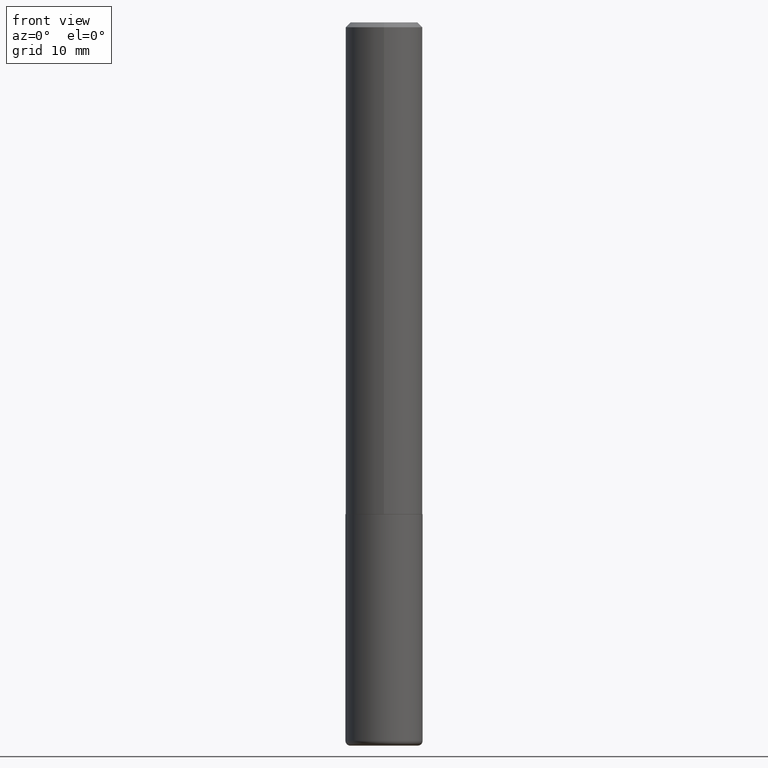
[diagram: clean part render]
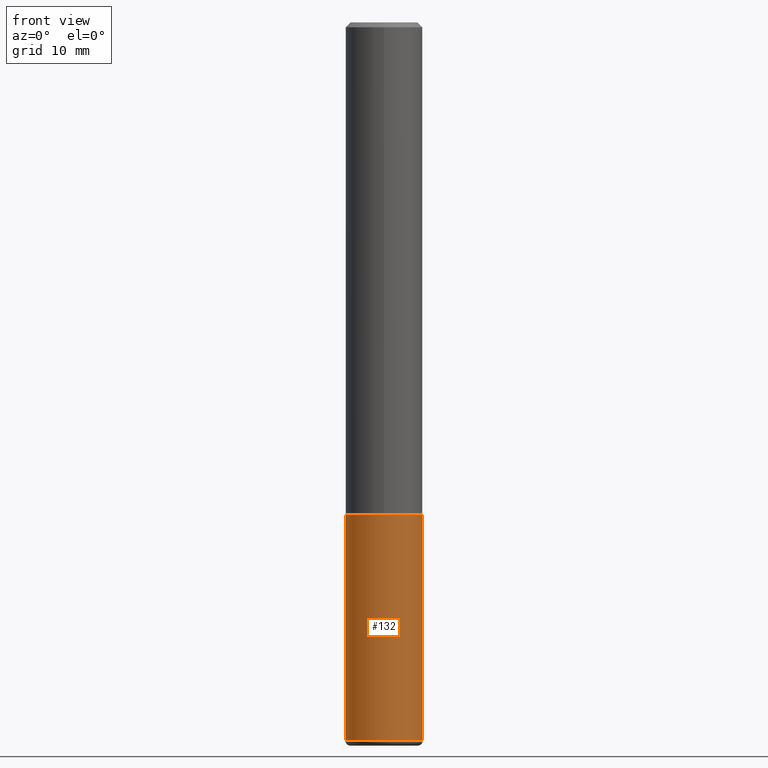
[diagram: same view with one face highlighted and labeled with its STEP entity id]
A machine part, front view. The second image highlights one B-rep face of the part: STEP entity #132.
In plain terms, the highlighted cylindrical surface (partial cylindrical patch) has radius 4.0005 mm, axis along (-0, 0, 1).
Its self-contained STEP definition (entity closure, byte-faithful):
#6 = EDGE_CURVE ( 'NONE', #332, #349, #303, .T. ) ;
#11 = CARTESIAN_POINT ( 'NONE',  ( 0.1575000000000000011, -8.110362001998737613E-15, -2.007899999999999796 ) ) ;
#14 = CARTESIAN_POINT ( 'NONE',  ( -0.1575000000000000011, -7.506599838789833107E-15, -2.007899999999999796 ) ) ;
#23 = EDGE_CURVE ( 'NONE', #62, #332, #126, .T. ) ;
#62 = VERTEX_POINT ( 'NONE', #212 ) ;
#83 = CARTESIAN_POINT ( 'NONE',  ( 0.1575000000000000011, -1.099816621735586889E-15, 7.679978421878598033E-30 ) ) ;
#94 = ORIENTED_EDGE ( 'NONE', *, *, #248, .F. ) ;
#97 = DIRECTION ( 'NONE',  ( 1.000000000000000000, -6.982962677686268288E-15, 0.000000000000000000 ) ) ;
#101 = AXIS2_PLACEMENT_3D ( 'NONE', #258, #202, #97 ) ;
#125 = DIRECTION ( 'NONE',  ( -2.445468806185136597E-29, 3.491481338843145583E-15, 1.000000000000000000 ) ) ;
#126 = CIRCLE ( 'NONE', #142, 0.1575000000000000011 ) ;
#131 = VECTOR ( 'NONE', #331, 39.37007874015748143 ) ;
#132 = ADVANCED_FACE ( 'NONE', ( #196 ), #296, .T. ) ;
#133 = EDGE_LOOP ( 'NONE', ( #94, #341, #371, #389 ) ) ;
#136 = DIRECTION ( 'NONE',  ( 1.000000000000000000, -6.982962677686261977E-15, 0.000000000000000000 ) ) ;
#142 = AXIS2_PLACEMENT_3D ( 'NONE', #246, #215, #136 ) ;
#147 = CARTESIAN_POINT ( 'NONE',  ( -0.1575000000000000011, 1.119104808822157801E-15, -7.747322767151475583E-30 ) ) ;
#184 = CARTESIAN_POINT ( 'NONE',  ( 0.1574999999999998346, -1.134068053669641403E-14, -2.933100000000000041 ) ) ;
#192 = CARTESIAN_POINT ( 'NONE',  ( 0.000000000000000000, 0.000000000000000000, 0.000000000000000000 ) ) ;
#196 = FACE_OUTER_BOUND ( 'NONE', #133, .T. ) ;
#202 = DIRECTION ( 'NONE',  ( -2.445468806185136597E-29, 3.491481338843145583E-15, 1.000000000000000000 ) ) ;
#204 = EDGE_CURVE ( 'NONE', #213, #349, #357, .T. ) ;
#212 = CARTESIAN_POINT ( 'NONE',  ( -0.1574999999999998346, -9.121759106138672895E-15, -2.933100000000000041 ) ) ;
#213 = VERTEX_POINT ( 'NONE', #14 ) ;
#215 = DIRECTION ( 'NONE',  ( -2.445468806185136597E-29, 3.491481338843145583E-15, 1.000000000000000000 ) ) ;
#246 = CARTESIAN_POINT ( 'NONE',  ( 7.172804555421624566E-29, -1.024086391496083050E-14, -2.933100000000000041 ) ) ;
#248 = EDGE_CURVE ( 'NONE', #62, #213, #322, .T. ) ;
#258 = CARTESIAN_POINT ( 'NONE',  ( 4.910256815939135309E-29, -7.010545380263150922E-15, -2.007899999999999796 ) ) ;
#296 = CYLINDRICAL_SURFACE ( 'NONE', #343, 0.1575000000000000011 ) ;
#303 = LINE ( 'NONE', #83, #334 ) ;
#322 = LINE ( 'NONE', #147, #131 ) ;
#331 = DIRECTION ( 'NONE',  ( -2.445468806185136877E-29, 3.491481338843145188E-15, 1.000000000000000000 ) ) ;
#332 = VERTEX_POINT ( 'NONE', #184 ) ;
#334 = VECTOR ( 'NONE', #415, 39.37007874015748143 ) ;
#341 = ORIENTED_EDGE ( 'NONE', *, *, #23, .T. ) ;
#343 = AXIS2_PLACEMENT_3D ( 'NONE', #192, #125, #393 ) ;
#349 = VERTEX_POINT ( 'NONE', #11 ) ;
#357 = CIRCLE ( 'NONE', #101, 0.1575000000000000011 ) ;
#371 = ORIENTED_EDGE ( 'NONE', *, *, #6, .T. ) ;
#389 = ORIENTED_EDGE ( 'NONE', *, *, #204, .F. ) ;
#393 = DIRECTION ( 'NONE',  ( 1.000000000000000000, -6.982962677686265922E-15, 4.876176775795935232E-29 ) ) ;
#415 = DIRECTION ( 'NONE',  ( -2.445468806185136877E-29, 3.491481338843145188E-15, 1.000000000000000000 ) ) ;